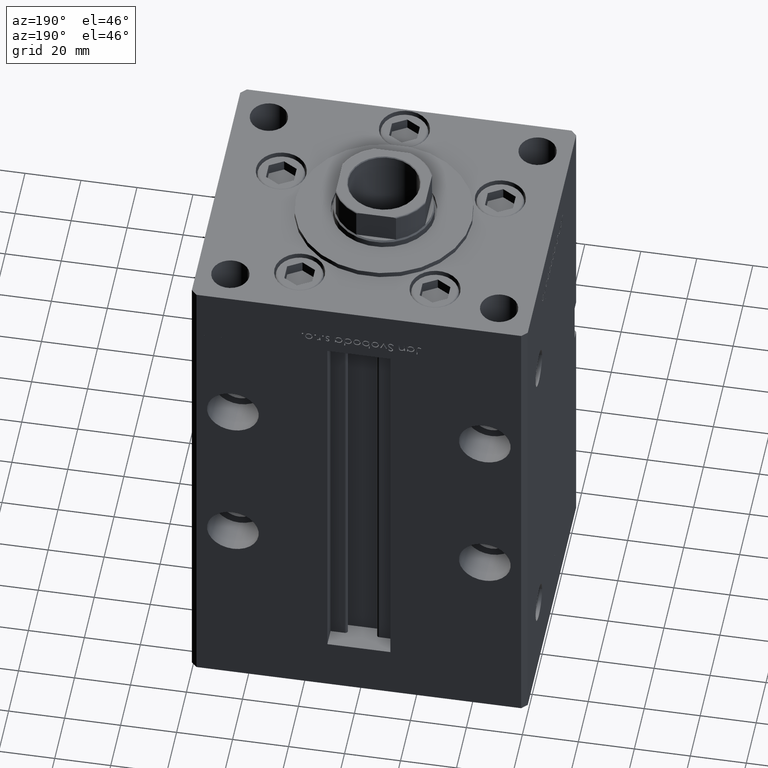
[diagram: clean part render]
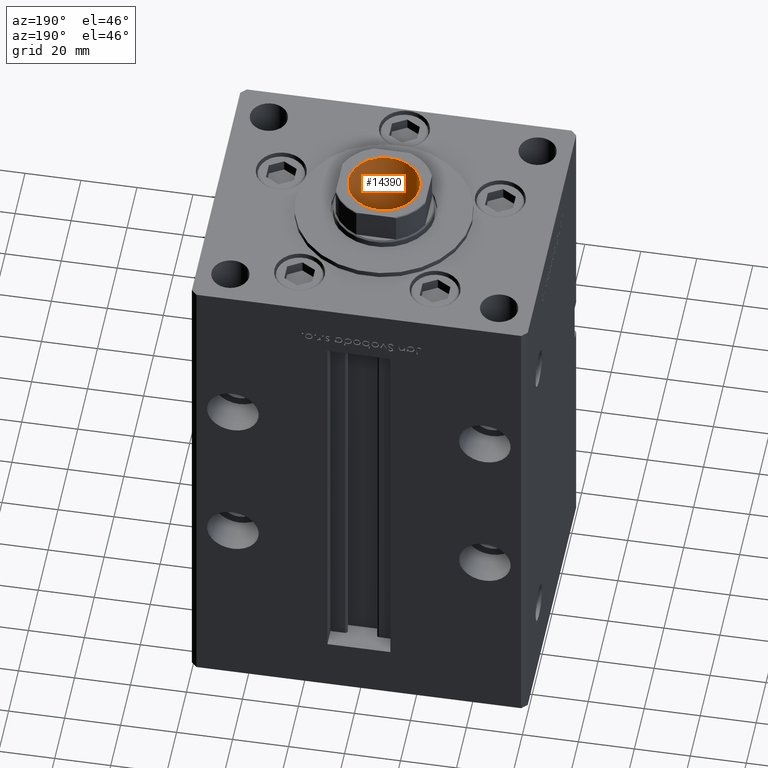
[diagram: same view with one face highlighted and labeled with its STEP entity id]
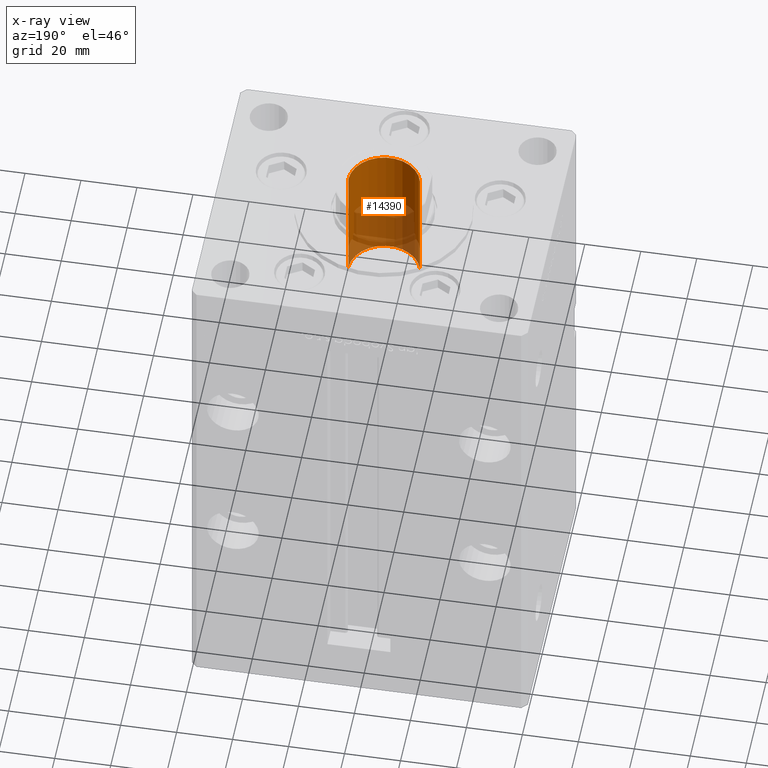
[diagram: x-ray of the same camera — body ghosted, the highlighted face saturated]
A machine part, auxiliary view. The second image highlights one B-rep face of the part: STEP entity #14390.
The next image is the same camera in x-ray: the body ghosted, the highlighted face saturated — about 44% of this face is hidden behind the body in this view.
In plain terms, the highlighted cylindrical surface (edge-blend (fillet) strip) has radius 12.75 mm, axis along (0, 0, 1).
Its self-contained STEP definition (entity closure, byte-faithful):
#422 = DIRECTION ( 'NONE',  ( 1.000000000000000000, 0.000000000000000000, 0.000000000000000000 ) ) ;
#1120 = EDGE_CURVE ( 'NONE', #10275, #38277, #9230, .T. ) ;
#1231 = FACE_OUTER_BOUND ( 'NONE', #30293, .T. ) ;
#1580 = LINE ( 'NONE', #37816, #24156 ) ;
#3162 = VERTEX_POINT ( 'NONE', #31615 ) ;
#7573 = LINE ( 'NONE', #11875, #12167 ) ;
#8438 = DIRECTION ( 'NONE',  ( -0.000000000000000000, -0.000000000000000000, 1.000000000000000000 ) ) ;
#9230 = CIRCLE ( 'NONE', #18678, 12.74999999999999467 ) ;
#9250 = DIRECTION ( 'NONE',  ( 1.000000000000000000, 0.000000000000000000, 0.000000000000000000 ) ) ;
#10275 = VERTEX_POINT ( 'NONE', #17030 ) ;
#11087 = CARTESIAN_POINT ( 'NONE',  ( 12.74999999999999467, 0.000000000000000000, 168.9499999999999602 ) ) ;
#11875 = CARTESIAN_POINT ( 'NONE',  ( 12.74999999999999467, 0.000000000000000000, 169.2500000000000000 ) ) ;
#12167 = VECTOR ( 'NONE', #44619, 1000.000000000000000 ) ;
#13442 = ORIENTED_EDGE ( 'NONE', *, *, #1120, .T. ) ;
#14390 = ADVANCED_FACE ( 'NONE', ( #1231 ), #25408, .F. ) ;
#17030 = CARTESIAN_POINT ( 'NONE',  ( -12.74999999999999467, 1.561424668912874519E-15, 168.9499999999999602 ) ) ;
#17135 = CIRCLE ( 'NONE', #30890, 12.74999999999999112 ) ;
#18678 = AXIS2_PLACEMENT_3D ( 'NONE', #32605, #49248, #24573 ) ;
#21182 = DIRECTION ( 'NONE',  ( -0.000000000000000000, -0.000000000000000000, 1.000000000000000000 ) ) ;
#21769 = VERTEX_POINT ( 'NONE', #50149 ) ;
#24152 = ORIENTED_EDGE ( 'NONE', *, *, #32194, .F. ) ;
#24156 = VECTOR ( 'NONE', #21182, 1000.000000000000000 ) ;
#24573 = DIRECTION ( 'NONE',  ( 1.000000000000000000, 0.000000000000000000, 0.000000000000000000 ) ) ;
#25408 = CYLINDRICAL_SURFACE ( 'NONE', #48525, 12.74999999999999467 ) ;
#28865 = CARTESIAN_POINT ( 'NONE',  ( 0.000000000000000000, 0.000000000000000000, 124.2500000000000142 ) ) ;
#30293 = EDGE_LOOP ( 'NONE', ( #24152, #32449, #13442, #32439 ) ) ;
#30890 = AXIS2_PLACEMENT_3D ( 'NONE', #28865, #8438, #422 ) ;
#31615 = CARTESIAN_POINT ( 'NONE',  ( 12.74999999999999112, 0.000000000000000000, 124.2500000000000142 ) ) ;
#32194 = EDGE_CURVE ( 'NONE', #21769, #3162, #17135, .T. ) ;
#32439 = ORIENTED_EDGE ( 'NONE', *, *, #49890, .F. ) ;
#32449 = ORIENTED_EDGE ( 'NONE', *, *, #48988, .T. ) ;
#32605 = CARTESIAN_POINT ( 'NONE',  ( 0.000000000000000000, 0.000000000000000000, 168.9499999999999602 ) ) ;
#33971 = CARTESIAN_POINT ( 'NONE',  ( 0.000000000000000000, 0.000000000000000000, 169.2500000000000000 ) ) ;
#37816 = CARTESIAN_POINT ( 'NONE',  ( -12.74999999999999467, 1.561424668912874519E-15, 169.2500000000000000 ) ) ;
#38277 = VERTEX_POINT ( 'NONE', #11087 ) ;
#44619 = DIRECTION ( 'NONE',  ( -0.000000000000000000, -0.000000000000000000, 1.000000000000000000 ) ) ;
#46025 = DIRECTION ( 'NONE',  ( -0.000000000000000000, -0.000000000000000000, 1.000000000000000000 ) ) ;
#48525 = AXIS2_PLACEMENT_3D ( 'NONE', #33971, #46025, #9250 ) ;
#48988 = EDGE_CURVE ( 'NONE', #21769, #10275, #1580, .T. ) ;
#49248 = DIRECTION ( 'NONE',  ( 0.000000000000000000, 0.000000000000000000, 1.000000000000000000 ) ) ;
#49890 = EDGE_CURVE ( 'NONE', #3162, #38277, #7573, .T. ) ;
#50149 = CARTESIAN_POINT ( 'NONE',  ( -12.74999999999999112, 1.561424668912874125E-15, 124.2500000000000142 ) ) ;